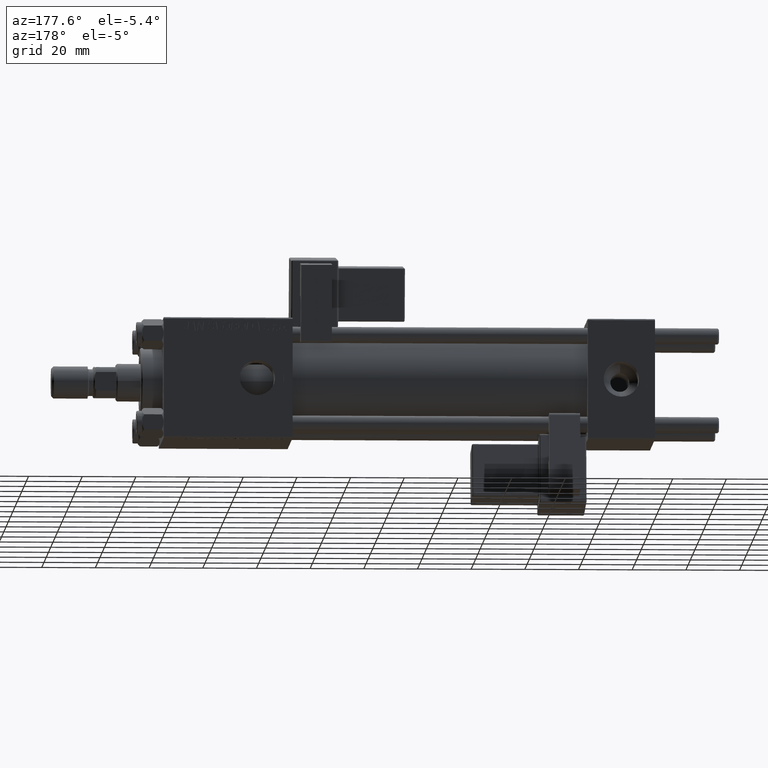
[diagram: clean part render]
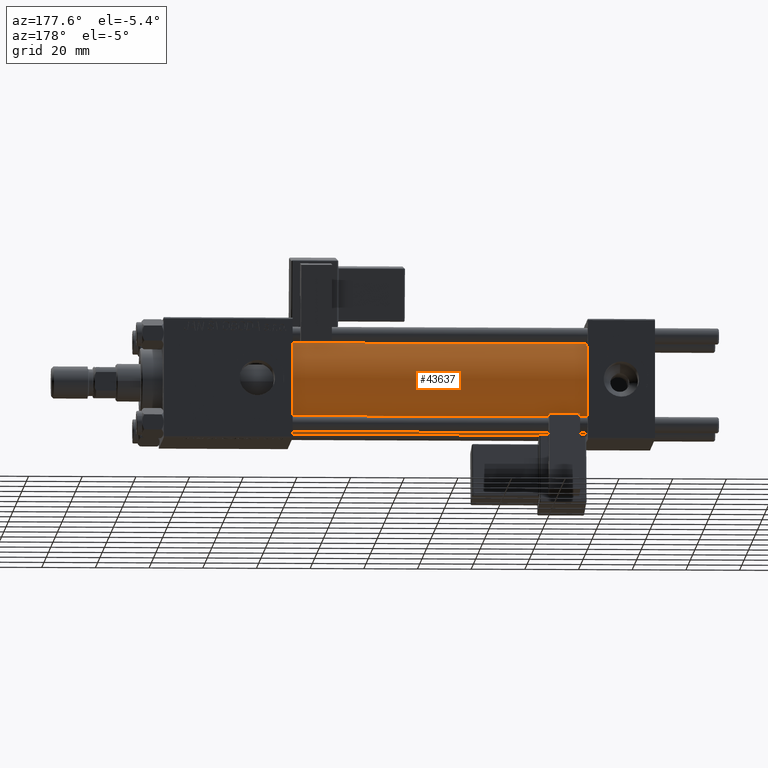
[diagram: same view with one face highlighted and labeled with its STEP entity id]
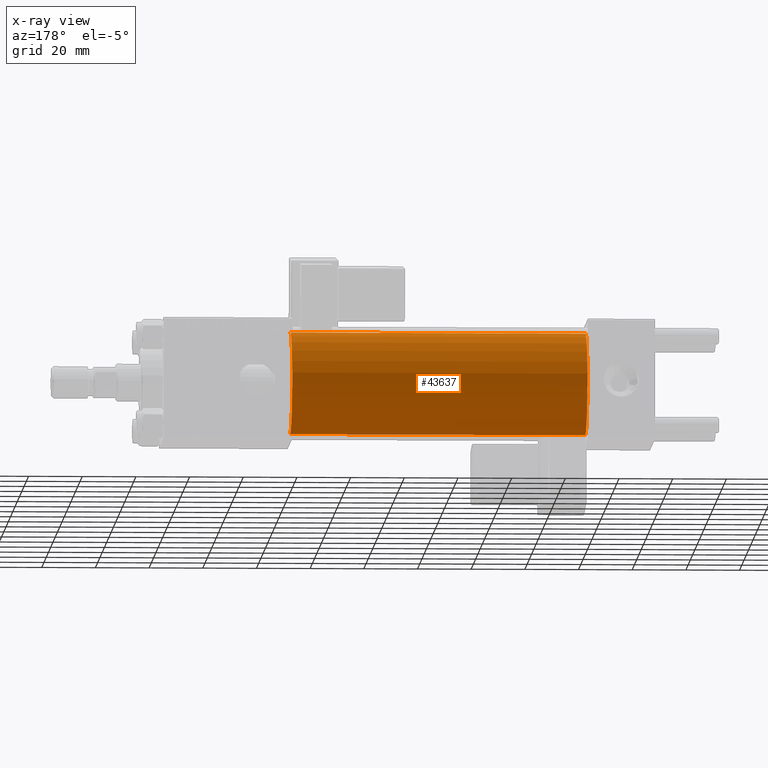
[diagram: x-ray of the same camera — body ghosted, the highlighted face saturated]
A machine part, auxiliary view. The second image highlights one B-rep face of the part: STEP entity #43637.
The next image is the same camera in x-ray: the body ghosted, the highlighted face saturated — about 0% of this face is hidden behind the body in this view.
In plain terms, the highlighted cylindrical surface (partial cylindrical patch) has radius 19 mm, axis along (-1, -0, -0).
Its self-contained STEP definition (entity closure, byte-faithful):
#1440 = DIRECTION ( 'NONE',  ( 0.000000000000000000, 0.000000000000000000, -1.000000000000000000 ) ) ;
#1540 = ORIENTED_EDGE ( 'NONE', *, *, #14347, .T. ) ;
#1800 = VERTEX_POINT ( 'NONE', #46428 ) ;
#8339 = EDGE_LOOP ( 'NONE', ( #34335, #21241, #1540, #9693 ) ) ;
#8370 = CARTESIAN_POINT ( 'NONE',  ( 135.0000000000000000, 2.326828918379970970E-15, -19.00000000000000000 ) ) ;
#9693 = ORIENTED_EDGE ( 'NONE', *, *, #22510, .F. ) ;
#10770 = CARTESIAN_POINT ( 'NONE',  ( 135.0000000000000000, 0.000000000000000000, 0.000000000000000000 ) ) ;
#11692 = CARTESIAN_POINT ( 'NONE',  ( 135.0000000000000000, 0.000000000000000000, 19.00000000000000000 ) ) ;
#14347 = EDGE_CURVE ( 'NONE', #1800, #48502, #21741, .T. ) ;
#14872 = DIRECTION ( 'NONE',  ( -1.000000000000000000, -0.000000000000000000, -0.000000000000000000 ) ) ;
#19253 = DIRECTION ( 'NONE',  ( 0.000000000000000000, 0.000000000000000000, 1.000000000000000000 ) ) ;
#19272 = CARTESIAN_POINT ( 'NONE',  ( 24.99999999999999289, 0.000000000000000000, 19.00000000000000000 ) ) ;
#20113 = CARTESIAN_POINT ( 'NONE',  ( 135.0000000000000000, 0.000000000000000000, 19.00000000000000000 ) ) ;
#21241 = ORIENTED_EDGE ( 'NONE', *, *, #51833, .T. ) ;
#21474 = AXIS2_PLACEMENT_3D ( 'NONE', #10770, #26402, #1440 ) ;
#21741 = CIRCLE ( 'NONE', #44532, 19.00000000000000000 ) ;
#22456 = CARTESIAN_POINT ( 'NONE',  ( 135.0000000000000000, 2.326828918379970970E-15, -19.00000000000000000 ) ) ;
#22510 = EDGE_CURVE ( 'NONE', #52614, #48502, #41561, .T. ) ;
#22552 = FACE_OUTER_BOUND ( 'NONE', #8339, .T. ) ;
#23323 = AXIS2_PLACEMENT_3D ( 'NONE', #28037, #14872, #19253 ) ;
#26402 = DIRECTION ( 'NONE',  ( 1.000000000000000000, 0.000000000000000000, 0.000000000000000000 ) ) ;
#26660 = CYLINDRICAL_SURFACE ( 'NONE', #23323, 19.00000000000000000 ) ;
#28037 = CARTESIAN_POINT ( 'NONE',  ( 135.0000000000000000, 0.000000000000000000, 0.000000000000000000 ) ) ;
#28432 = CARTESIAN_POINT ( 'NONE',  ( 24.99999999999999289, 0.000000000000000000, 0.000000000000000000 ) ) ;
#29386 = CIRCLE ( 'NONE', #21474, 19.00000000000000000 ) ;
#32276 = DIRECTION ( 'NONE',  ( -1.000000000000000000, -0.000000000000000000, -0.000000000000000000 ) ) ;
#34335 = ORIENTED_EDGE ( 'NONE', *, *, #40969, .F. ) ;
#35941 = VECTOR ( 'NONE', #32276, 1000.000000000000000 ) ;
#40969 = EDGE_CURVE ( 'NONE', #42283, #52614, #29386, .T. ) ;
#41018 = VECTOR ( 'NONE', #51818, 1000.000000000000000 ) ;
#41561 = LINE ( 'NONE', #11692, #35941 ) ;
#42283 = VERTEX_POINT ( 'NONE', #8370 ) ;
#43637 = ADVANCED_FACE ( 'NONE', ( #22552 ), #26660, .T. ) ;
#44532 = AXIS2_PLACEMENT_3D ( 'NONE', #28432, #49561, #54202 ) ;
#46428 = CARTESIAN_POINT ( 'NONE',  ( 24.99999999999999289, 2.326828918379970970E-15, -19.00000000000000000 ) ) ;
#48247 = LINE ( 'NONE', #22456, #41018 ) ;
#48502 = VERTEX_POINT ( 'NONE', #19272 ) ;
#49561 = DIRECTION ( 'NONE',  ( 1.000000000000000000, -0.000000000000000000, 0.000000000000000000 ) ) ;
#51818 = DIRECTION ( 'NONE',  ( -1.000000000000000000, -0.000000000000000000, -0.000000000000000000 ) ) ;
#51833 = EDGE_CURVE ( 'NONE', #42283, #1800, #48247, .T. ) ;
#52614 = VERTEX_POINT ( 'NONE', #20113 ) ;
#54202 = DIRECTION ( 'NONE',  ( 0.000000000000000000, 0.000000000000000000, 1.000000000000000000 ) ) ;